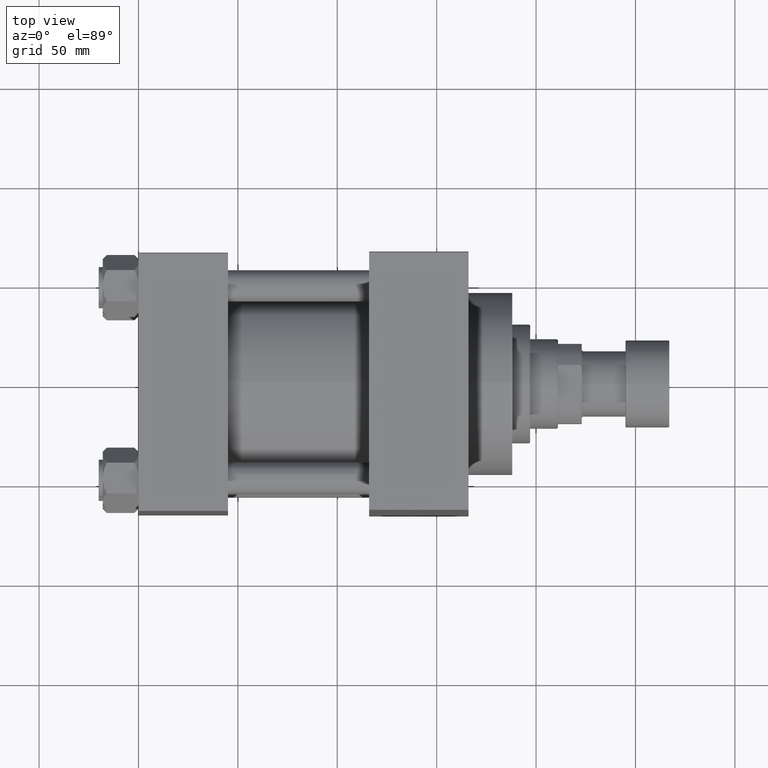
[diagram: clean part render]
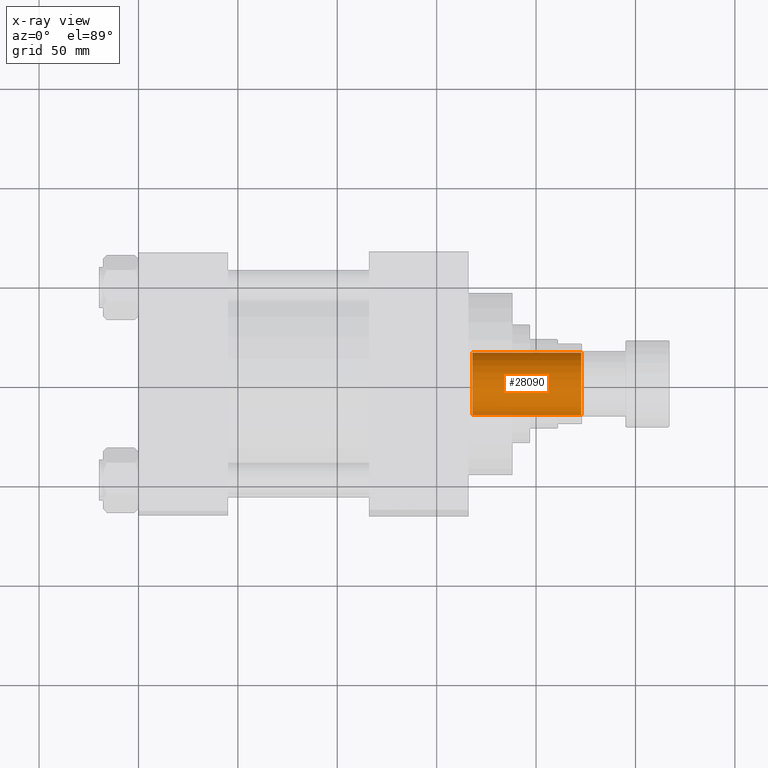
[diagram: x-ray — body ghosted, one internal face saturated and labeled with its STEP entity id]
A machine part, top view, then the same camera in x-ray: the body is ghosted and one INTERNAL B-rep face — a face not visible from any outside direction — is saturated and labeled: STEP entity #28090.
In plain terms, the highlighted cylindrical surface (edge-blend (fillet) strip) has radius 15.75 mm, axis along (1, 0, 0).
Its self-contained STEP definition (entity closure, byte-faithful):
#323 = VERTEX_POINT ( 'NONE', #45485 ) ;
#1500 = AXIS2_PLACEMENT_3D ( 'NONE', #39640, #47217, #6190 ) ;
#1536 = CARTESIAN_POINT ( 'NONE',  ( 0.000000000000000000, 0.000000000000000000, 178.0000000000000284 ) ) ;
#2187 = VERTEX_POINT ( 'NONE', #27510 ) ;
#4233 = FACE_OUTER_BOUND ( 'NONE', #20176, .T. ) ;
#5210 = DIRECTION ( 'NONE',  ( 1.000000000000000000, 0.000000000000000000, 0.000000000000000000 ) ) ;
#6190 = DIRECTION ( 'NONE',  ( 1.000000000000000000, 0.000000000000000000, 0.000000000000000000 ) ) ;
#7151 = DIRECTION ( 'NONE',  ( -0.000000000000000000, -0.000000000000000000, 1.000000000000000000 ) ) ;
#8386 = CYLINDRICAL_SURFACE ( 'NONE', #35832, 15.74999999999999289 ) ;
#10563 = CARTESIAN_POINT ( 'NONE',  ( -15.74999999999999289, 1.928818708657080556E-15, 178.0000000000000284 ) ) ;
#10832 = CIRCLE ( 'NONE', #1500, 15.74999999999998934 ) ;
#11055 = VERTEX_POINT ( 'NONE', #44255 ) ;
#11752 = ORIENTED_EDGE ( 'NONE', *, *, #36056, .T. ) ;
#15267 = DIRECTION ( 'NONE',  ( 0.000000000000000000, 0.000000000000000000, 1.000000000000000000 ) ) ;
#19262 = EDGE_CURVE ( 'NONE', #323, #35360, #32803, .T. ) ;
#20176 = EDGE_LOOP ( 'NONE', ( #40607, #46519, #11752, #29737 ) ) ;
#21881 = AXIS2_PLACEMENT_3D ( 'NONE', #45327, #15267, #41407 ) ;
#23839 = VECTOR ( 'NONE', #7151, 1000.000000000000000 ) ;
#24359 = EDGE_CURVE ( 'NONE', #11055, #2187, #36042, .T. ) ;
#27510 = CARTESIAN_POINT ( 'NONE',  ( 15.74999999999999289, 0.000000000000000000, 177.6999999999999886 ) ) ;
#28090 = ADVANCED_FACE ( 'NONE', ( #4233 ), #8386, .F. ) ;
#28935 = DIRECTION ( 'NONE',  ( -0.000000000000000000, -0.000000000000000000, 1.000000000000000000 ) ) ;
#29737 = ORIENTED_EDGE ( 'NONE', *, *, #24359, .F. ) ;
#30614 = DIRECTION ( 'NONE',  ( -0.000000000000000000, -0.000000000000000000, 1.000000000000000000 ) ) ;
#32365 = CARTESIAN_POINT ( 'NONE',  ( 15.74999999999999289, 0.000000000000000000, 178.0000000000000284 ) ) ;
#32803 = LINE ( 'NONE', #10563, #23839 ) ;
#32882 = EDGE_CURVE ( 'NONE', #323, #11055, #10832, .T. ) ;
#35360 = VERTEX_POINT ( 'NONE', #47657 ) ;
#35832 = AXIS2_PLACEMENT_3D ( 'NONE', #1536, #30614, #5210 ) ;
#36042 = LINE ( 'NONE', #32365, #41096 ) ;
#36056 = EDGE_CURVE ( 'NONE', #35360, #2187, #47633, .T. ) ;
#39640 = CARTESIAN_POINT ( 'NONE',  ( 0.000000000000000000, 0.000000000000000000, 123.0000000000000142 ) ) ;
#40607 = ORIENTED_EDGE ( 'NONE', *, *, #32882, .F. ) ;
#41096 = VECTOR ( 'NONE', #28935, 1000.000000000000000 ) ;
#41407 = DIRECTION ( 'NONE',  ( 1.000000000000000000, 0.000000000000000000, 0.000000000000000000 ) ) ;
#44255 = CARTESIAN_POINT ( 'NONE',  ( 15.74999999999998934, 0.000000000000000000, 123.0000000000000142 ) ) ;
#45327 = CARTESIAN_POINT ( 'NONE',  ( 0.000000000000000000, 0.000000000000000000, 177.6999999999999886 ) ) ;
#45485 = CARTESIAN_POINT ( 'NONE',  ( -15.74999999999998934, 1.928818708657080161E-15, 123.0000000000000142 ) ) ;
#46519 = ORIENTED_EDGE ( 'NONE', *, *, #19262, .T. ) ;
#47217 = DIRECTION ( 'NONE',  ( -0.000000000000000000, -0.000000000000000000, 1.000000000000000000 ) ) ;
#47633 = CIRCLE ( 'NONE', #21881, 15.74999999999999289 ) ;
#47657 = CARTESIAN_POINT ( 'NONE',  ( -15.74999999999999289, 1.928818708657080556E-15, 177.6999999999999886 ) ) ;